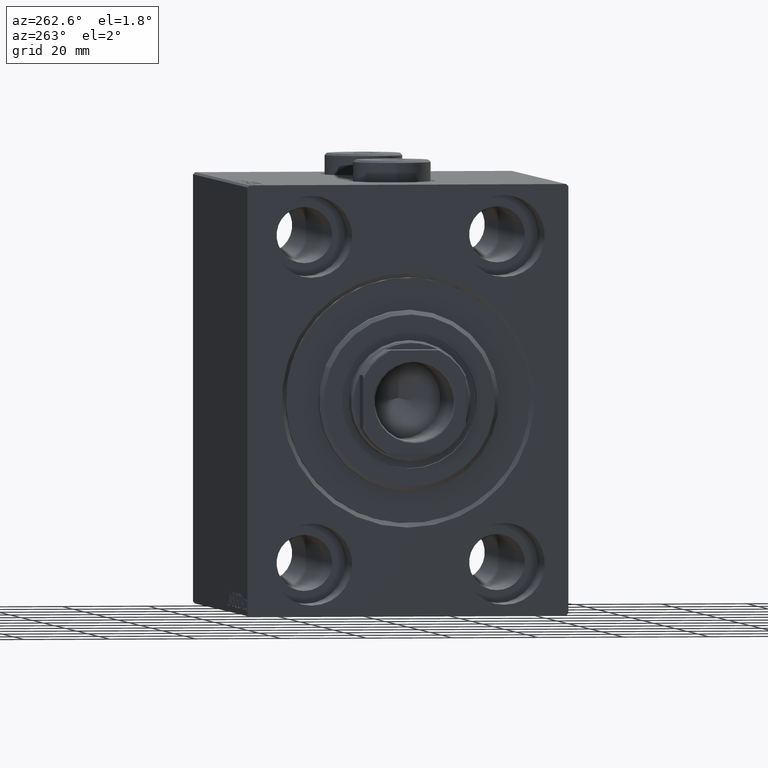
[diagram: clean part render]
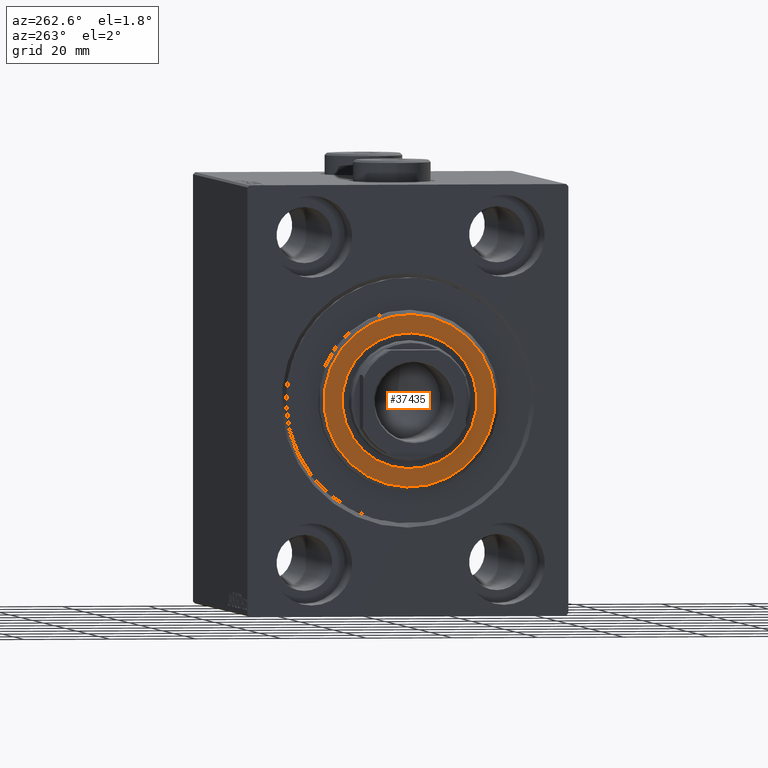
[diagram: same view with one face highlighted and labeled with its STEP entity id]
A machine part, auxiliary view. The second image highlights one B-rep face of the part: STEP entity #37435.
In plain terms, the highlighted planar face has unit normal (-1, 0, 0).
Its self-contained STEP definition (entity closure, byte-faithful):
#1116 = FACE_OUTER_BOUND ( 'NONE', #22470, .T. ) ;
#1475 = CIRCLE ( 'NONE', #40977, 19.99999999999999645 ) ;
#5170 = CIRCLE ( 'NONE', #16137, 15.75000000000000000 ) ;
#6549 = VERTEX_POINT ( 'NONE', #34131 ) ;
#6641 = CARTESIAN_POINT ( 'NONE',  ( 3.000000000000000000, 0.000000000000000000, 0.000000000000000000 ) ) ;
#9674 = EDGE_CURVE ( 'NONE', #20566, #17579, #13918, .T. ) ;
#12074 = EDGE_CURVE ( 'NONE', #17579, #20566, #1475, .T. ) ;
#12486 = AXIS2_PLACEMENT_3D ( 'NONE', #41316, #37886, #23911 ) ;
#13062 = AXIS2_PLACEMENT_3D ( 'NONE', #29087, #15332, #43066 ) ;
#13529 = AXIS2_PLACEMENT_3D ( 'NONE', #30846, #38605, #24407 ) ;
#13918 = CIRCLE ( 'NONE', #12486, 19.99999999999999645 ) ;
#15031 = CARTESIAN_POINT ( 'NONE',  ( 3.000000000000000000, 0.000000000000000000, 19.99999999999999645 ) ) ;
#15103 = FACE_BOUND ( 'NONE', #43791, .T. ) ;
#15332 = DIRECTION ( 'NONE',  ( 1.000000000000000000, -0.000000000000000000, 0.000000000000000000 ) ) ;
#15822 = ORIENTED_EDGE ( 'NONE', *, *, #24240, .T. ) ;
#16137 = AXIS2_PLACEMENT_3D ( 'NONE', #25756, #36504, #29182 ) ;
#17392 = DIRECTION ( 'NONE',  ( 1.000000000000000000, -0.000000000000000000, 0.000000000000000000 ) ) ;
#17579 = VERTEX_POINT ( 'NONE', #33666 ) ;
#20566 = VERTEX_POINT ( 'NONE', #15031 ) ;
#21182 = ORIENTED_EDGE ( 'NONE', *, *, #12074, .T. ) ;
#21745 = PLANE ( 'NONE',  #13062 ) ;
#22470 = EDGE_LOOP ( 'NONE', ( #38141, #21182 ) ) ;
#23911 = DIRECTION ( 'NONE',  ( 0.000000000000000000, 0.000000000000000000, -1.000000000000000000 ) ) ;
#24240 = EDGE_CURVE ( 'NONE', #33662, #6549, #33323, .T. ) ;
#24407 = DIRECTION ( 'NONE',  ( 0.000000000000000000, 0.000000000000000000, -1.000000000000000000 ) ) ;
#25756 = CARTESIAN_POINT ( 'NONE',  ( 3.000000000000000000, 0.000000000000000000, 0.000000000000000000 ) ) ;
#29087 = CARTESIAN_POINT ( 'NONE',  ( 3.000000000000000000, 0.000000000000000000, 0.000000000000000000 ) ) ;
#29182 = DIRECTION ( 'NONE',  ( 0.000000000000000000, 0.000000000000000000, -1.000000000000000000 ) ) ;
#30716 = DIRECTION ( 'NONE',  ( 0.000000000000000000, 0.000000000000000000, -1.000000000000000000 ) ) ;
#30846 = CARTESIAN_POINT ( 'NONE',  ( 3.000000000000000000, 0.000000000000000000, 0.000000000000000000 ) ) ;
#33323 = CIRCLE ( 'NONE', #13529, 15.75000000000000000 ) ;
#33662 = VERTEX_POINT ( 'NONE', #40402 ) ;
#33666 = CARTESIAN_POINT ( 'NONE',  ( 3.000000000000000000, 2.510525938252074087E-15, -19.99999999999999645 ) ) ;
#34131 = CARTESIAN_POINT ( 'NONE',  ( 3.000000000000000000, 0.000000000000000000, 15.75000000000000000 ) ) ;
#35638 = ORIENTED_EDGE ( 'NONE', *, *, #43487, .T. ) ;
#36504 = DIRECTION ( 'NONE',  ( -1.000000000000000000, 0.000000000000000000, -0.000000000000000000 ) ) ;
#37435 = ADVANCED_FACE ( 'NONE', ( #1116, #15103 ), #21745, .T. ) ;
#37886 = DIRECTION ( 'NONE',  ( 1.000000000000000000, -0.000000000000000000, 0.000000000000000000 ) ) ;
#38141 = ORIENTED_EDGE ( 'NONE', *, *, #9674, .T. ) ;
#38605 = DIRECTION ( 'NONE',  ( -1.000000000000000000, 0.000000000000000000, -0.000000000000000000 ) ) ;
#40402 = CARTESIAN_POINT ( 'NONE',  ( 3.000000000000000000, 1.928818708657080950E-15, -15.75000000000000000 ) ) ;
#40977 = AXIS2_PLACEMENT_3D ( 'NONE', #6641, #17392, #30716 ) ;
#41316 = CARTESIAN_POINT ( 'NONE',  ( 3.000000000000000000, 0.000000000000000000, 0.000000000000000000 ) ) ;
#43066 = DIRECTION ( 'NONE',  ( 0.000000000000000000, 0.000000000000000000, -1.000000000000000000 ) ) ;
#43487 = EDGE_CURVE ( 'NONE', #6549, #33662, #5170, .T. ) ;
#43791 = EDGE_LOOP ( 'NONE', ( #35638, #15822 ) ) ;